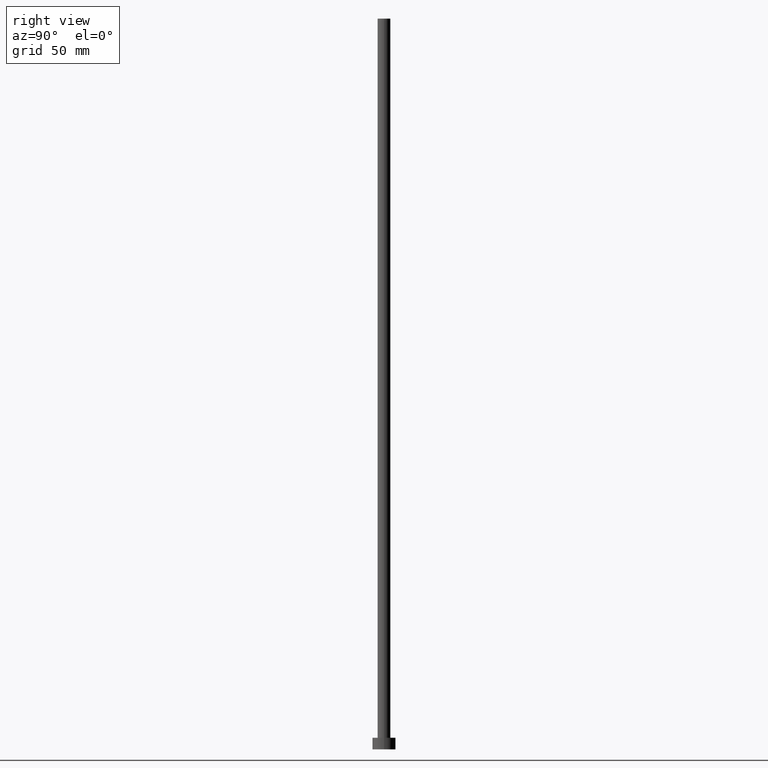
[diagram: clean part render]
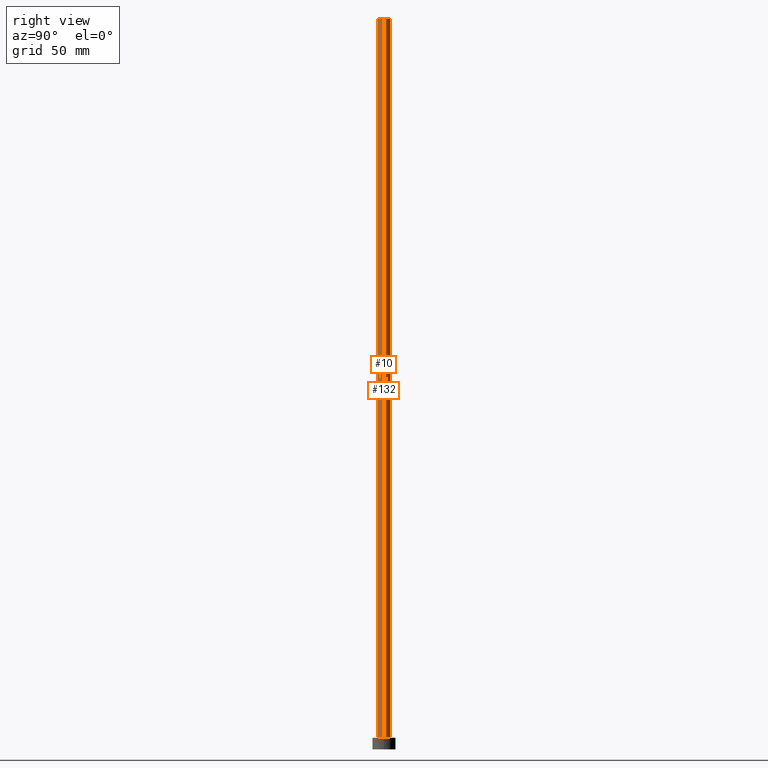
[diagram: same view with one multi-face feature highlighted, each face labeled with its STEP entity id]
A machine part, right view. The highlighted faces form ONE feature: a constant-radius fillet chain: 2 tangent blend faces with common blend radius 2.75 mm. The faces share edges in the B-rep.
Their STEP definitions:
[1] entity #10 (Cylinder):
#8 = DIRECTION ( 'NONE',  ( 0.000000000000000000, 0.000000000000000000, 1.000000000000000000 ) ) ;
#10 = ADVANCED_FACE ( 'NONE', ( #127 ), #80, .T. ) ;
#27 = VECTOR ( 'NONE', #129, 1000.000000000000000 ) ;
#32 = EDGE_CURVE ( 'NONE', #57, #235, #246, .T. ) ;
#37 = EDGE_CURVE ( 'NONE', #235, #201, #55, .T. ) ;
#44 = DIRECTION ( 'NONE',  ( 0.000000000000000000, 0.000000000000000000, 1.000000000000000000 ) ) ;
#48 = LINE ( 'NONE', #215, #27 ) ;
#55 = CIRCLE ( 'NONE', #88, 2.750000000000000000 ) ;
#57 = VERTEX_POINT ( 'NONE', #60 ) ;
#60 = CARTESIAN_POINT ( 'NONE',  ( -2.750000000000000000, 0.000000000000000000, 315.0000000000000000 ) ) ;
#70 = ORIENTED_EDGE ( 'NONE', *, *, #203, .F. ) ;
#72 = EDGE_LOOP ( 'NONE', ( #70, #149, #87, #202 ) ) ;
#78 = AXIS2_PLACEMENT_3D ( 'NONE', #171, #44, #213 ) ;
#80 = CYLINDRICAL_SURFACE ( 'NONE', #158, 2.750000000000000000 ) ;
#81 = CARTESIAN_POINT ( 'NONE',  ( -2.750000000000000000, 0.000000000000000000, 315.0000000000000000 ) ) ;
#87 = ORIENTED_EDGE ( 'NONE', *, *, #32, .T. ) ;
#88 = AXIS2_PLACEMENT_3D ( 'NONE', #220, #8, #162 ) ;
#102 = CARTESIAN_POINT ( 'NONE',  ( 0.000000000000000000, 0.000000000000000000, 315.0000000000000000 ) ) ;
#110 = CARTESIAN_POINT ( 'NONE',  ( 2.750000000000000000, 3.367778697655221012E-16, 315.0000000000000000 ) ) ;
#121 = DIRECTION ( 'NONE',  ( -0.000000000000000000, -0.000000000000000000, -1.000000000000000000 ) ) ;
#127 = FACE_OUTER_BOUND ( 'NONE', #72, .T. ) ;
#129 = DIRECTION ( 'NONE',  ( -0.000000000000000000, -0.000000000000000000, -1.000000000000000000 ) ) ;
#143 = DIRECTION ( 'NONE',  ( -0.000000000000000000, -0.000000000000000000, -1.000000000000000000 ) ) ;
#149 = ORIENTED_EDGE ( 'NONE', *, *, #151, .F. ) ;
#151 = EDGE_CURVE ( 'NONE', #57, #167, #225, .T. ) ;
#158 = AXIS2_PLACEMENT_3D ( 'NONE', #102, #143, #188 ) ;
#162 = DIRECTION ( 'NONE',  ( 1.000000000000000000, 0.000000000000000000, 0.000000000000000000 ) ) ;
#167 = VERTEX_POINT ( 'NONE', #110 ) ;
#171 = CARTESIAN_POINT ( 'NONE',  ( 0.000000000000000000, 0.000000000000000000, 315.0000000000000000 ) ) ;
#174 = CARTESIAN_POINT ( 'NONE',  ( -2.750000000000000000, 0.000000000000000000, 5.000000000000000000 ) ) ;
#188 = DIRECTION ( 'NONE',  ( -1.000000000000000000, 0.000000000000000000, 0.000000000000000000 ) ) ;
#200 = VECTOR ( 'NONE', #121, 1000.000000000000000 ) ;
#201 = VERTEX_POINT ( 'NONE', #254 ) ;
#202 = ORIENTED_EDGE ( 'NONE', *, *, #37, .T. ) ;
#203 = EDGE_CURVE ( 'NONE', #167, #201, #48, .T. ) ;
#213 = DIRECTION ( 'NONE',  ( 1.000000000000000000, 0.000000000000000000, 0.000000000000000000 ) ) ;
#215 = CARTESIAN_POINT ( 'NONE',  ( 2.750000000000000000, 3.367778697655221012E-16, 315.0000000000000000 ) ) ;
#220 = CARTESIAN_POINT ( 'NONE',  ( 0.000000000000000000, 0.000000000000000000, 5.000000000000000000 ) ) ;
#225 = CIRCLE ( 'NONE', #78, 2.750000000000000000 ) ;
#235 = VERTEX_POINT ( 'NONE', #174 ) ;
#246 = LINE ( 'NONE', #81, #200 ) ;
#254 = CARTESIAN_POINT ( 'NONE',  ( 2.750000000000000000, 3.367778697655221012E-16, 5.000000000000000000 ) ) ;
[2] entity #132 (Cylinder):
#1 = CIRCLE ( 'NONE', #114, 2.750000000000000000 ) ;
#3 = ORIENTED_EDGE ( 'NONE', *, *, #108, .T. ) ;
#16 = EDGE_LOOP ( 'NONE', ( #131, #112, #3, #84 ) ) ;
#20 = DIRECTION ( 'NONE',  ( 1.000000000000000000, 0.000000000000000000, 0.000000000000000000 ) ) ;
#25 = DIRECTION ( 'NONE',  ( -0.000000000000000000, -0.000000000000000000, -1.000000000000000000 ) ) ;
#27 = VECTOR ( 'NONE', #129, 1000.000000000000000 ) ;
#32 = EDGE_CURVE ( 'NONE', #57, #235, #246, .T. ) ;
#42 = DIRECTION ( 'NONE',  ( 0.000000000000000000, 0.000000000000000000, 1.000000000000000000 ) ) ;
#48 = LINE ( 'NONE', #215, #27 ) ;
#57 = VERTEX_POINT ( 'NONE', #60 ) ;
#60 = CARTESIAN_POINT ( 'NONE',  ( -2.750000000000000000, 0.000000000000000000, 315.0000000000000000 ) ) ;
#81 = CARTESIAN_POINT ( 'NONE',  ( -2.750000000000000000, 0.000000000000000000, 315.0000000000000000 ) ) ;
#84 = ORIENTED_EDGE ( 'NONE', *, *, #32, .F. ) ;
#98 = DIRECTION ( 'NONE',  ( 1.000000000000000000, 0.000000000000000000, 0.000000000000000000 ) ) ;
#99 = AXIS2_PLACEMENT_3D ( 'NONE', #222, #25, #100 ) ;
#100 = DIRECTION ( 'NONE',  ( -1.000000000000000000, 0.000000000000000000, 0.000000000000000000 ) ) ;
#104 = EDGE_CURVE ( 'NONE', #167, #57, #1, .T. ) ;
#108 = EDGE_CURVE ( 'NONE', #201, #235, #175, .T. ) ;
#110 = CARTESIAN_POINT ( 'NONE',  ( 2.750000000000000000, 3.367778697655221012E-16, 315.0000000000000000 ) ) ;
#112 = ORIENTED_EDGE ( 'NONE', *, *, #203, .T. ) ;
#114 = AXIS2_PLACEMENT_3D ( 'NONE', #123, #156, #98 ) ;
#121 = DIRECTION ( 'NONE',  ( -0.000000000000000000, -0.000000000000000000, -1.000000000000000000 ) ) ;
#123 = CARTESIAN_POINT ( 'NONE',  ( 0.000000000000000000, 0.000000000000000000, 315.0000000000000000 ) ) ;
#129 = DIRECTION ( 'NONE',  ( -0.000000000000000000, -0.000000000000000000, -1.000000000000000000 ) ) ;
#131 = ORIENTED_EDGE ( 'NONE', *, *, #104, .F. ) ;
#132 = ADVANCED_FACE ( 'NONE', ( #184 ), #244, .T. ) ;
#137 = AXIS2_PLACEMENT_3D ( 'NONE', #242, #42, #20 ) ;
#156 = DIRECTION ( 'NONE',  ( 0.000000000000000000, 0.000000000000000000, 1.000000000000000000 ) ) ;
#167 = VERTEX_POINT ( 'NONE', #110 ) ;
#174 = CARTESIAN_POINT ( 'NONE',  ( -2.750000000000000000, 0.000000000000000000, 5.000000000000000000 ) ) ;
#175 = CIRCLE ( 'NONE', #137, 2.750000000000000000 ) ;
#184 = FACE_OUTER_BOUND ( 'NONE', #16, .T. ) ;
#200 = VECTOR ( 'NONE', #121, 1000.000000000000000 ) ;
#201 = VERTEX_POINT ( 'NONE', #254 ) ;
#203 = EDGE_CURVE ( 'NONE', #167, #201, #48, .T. ) ;
#215 = CARTESIAN_POINT ( 'NONE',  ( 2.750000000000000000, 3.367778697655221012E-16, 315.0000000000000000 ) ) ;
#222 = CARTESIAN_POINT ( 'NONE',  ( 0.000000000000000000, 0.000000000000000000, 315.0000000000000000 ) ) ;
#235 = VERTEX_POINT ( 'NONE', #174 ) ;
#242 = CARTESIAN_POINT ( 'NONE',  ( 0.000000000000000000, 0.000000000000000000, 5.000000000000000000 ) ) ;
#244 = CYLINDRICAL_SURFACE ( 'NONE', #99, 2.750000000000000000 ) ;
#246 = LINE ( 'NONE', #81, #200 ) ;
#254 = CARTESIAN_POINT ( 'NONE',  ( 2.750000000000000000, 3.367778697655221012E-16, 5.000000000000000000 ) ) ;